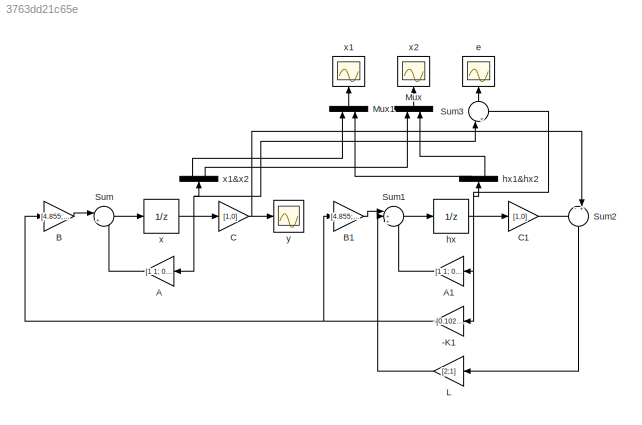
MODEL slx_3763dd21c65e
KIND model
CONFIG AbsTol = auto
CONFIG EnableMultiTasking = off
CONFIG FixedStep = 1
CONFIG MaxStep = auto
CONFIG MinStep = auto
CONFIG RelTol = 1e-3
CONFIG SampleTimeConstraint = Unconstrained
CONFIG SolverName = FixedStepAuto
CONFIG StartTime = 0.0
CONFIG StopTime = 10.0
BLOCK [Gain] -K1
  Gain = -[0.102986611740474,0.154479917610711]
  Multiplication = Matrix(K*u)
BLOCK [Gain] A
  Gain = [1 1; 0 1]
  Multiplication = Matrix(K*u)
BLOCK [Gain] A1
  Gain = [1 1; 0 1]
  Multiplication = Matrix(K*u)
BLOCK [Gain] B
  Gain = [4.855;9.71];
  Multiplication = Matrix(K*u)
BLOCK [Gain] B1
  Gain = [4.855;9.71];
  Multiplication = Matrix(K*u)
BLOCK [Gain] C
  Gain = [1,0]
  Multiplication = Matrix(K*u)
BLOCK [Gain] C1
  Gain = [1,0]
  Multiplication = Matrix(K*u)
BLOCK [Gain] L
  Gain = [2;1]
  Multiplication = Matrix(K*u)
BLOCK [Mux] Mux
  DisplayOption = bar
  Inputs = 2
  NameLocation = right
BLOCK [Mux] Mux1
  DisplayOption = bar
  Inputs = 2
  NameLocation = right
BLOCK [Sum] Sum
  Inputs = |++
BLOCK [Sum] Sum1
  Inputs = |+++
BLOCK [Sum] Sum2
  Inputs = -+|
  NameLocation = left
BLOCK [Sum] Sum3
  Inputs = |+-
  NameLocation = right
BLOCK [Scope] e
  Floating = off
  NameLocation = right
  NumInputPorts = 1
  ScopeSpecificationString = Simulink.scopes.TimeScopeBlockCfg('CurrentConfiguration', extmgr.ConfigurationSet(extmgr.Configuration('Core','General UI',true,'FigureColor',[1 1 1]),extmgr.Configuration('Core','Source UI',true),extmgr.Configuration('Sources','WiredSimulink',true,'DataLoggingVariableName','ScopeData2'),extmgr.Configuration('Visuals','Time Domain',true,'SerializedDisplays',{struct('MinYLimReal','-1.25','MaxYLimRe...<+2324ch>
BLOCK [UnitDelay] hx
  HasFrameUpgradeWarning = on
  InitialCondition = [0;0];
  SampleTime = -1
BLOCK [Demux] hx1&hx2
  NameLocation = right
  Outputs = 2
BLOCK [UnitDelay] x
  HasFrameUpgradeWarning = on
  InitialCondition = [1;0];
  SampleTime = -1
BLOCK [Scope] x1
  Floating = off
  NameLocation = right
  NumInputPorts = 1
  ScopeSpecificationString = Simulink.scopes.TimeScopeBlockCfg('CurrentConfiguration', extmgr.ConfigurationSet(extmgr.Configuration('Core','General UI',true,'FigureColor',[1 1 1]),extmgr.Configuration('Core','Source UI',true),extmgr.Configuration('Sources','WiredSimulink',true,'DataLoggingVariableName','ScopeData1'),extmgr.Configuration('Visuals','Time Domain',true,'SerializedDisplays',{struct('MinYLimReal','-1.65625','MaxYLi...<+2381ch>
BLOCK [Demux] x1&x2
  NameLocation = right
  Outputs = 2
BLOCK [Scope] x2
  Floating = off
  NameLocation = right
  NumInputPorts = 1
  ScopeSpecificationString = Simulink.scopes.TimeScopeBlockCfg('CurrentConfiguration', extmgr.ConfigurationSet(extmgr.Configuration('Core','General UI',true,'FigureColor',[1 1 1]),extmgr.Configuration('Core','Source UI',true),extmgr.Configuration('Sources','WiredSimulink',true,'DataLoggingVariableName','ScopeData1'),extmgr.Configuration('Visuals','Time Domain',true,'SerializedDisplays',{struct('MinYLimReal','-4.25','MaxYLimRe...<+2363ch>
BLOCK [Scope] y
  Floating = off
  NumInputPorts = 1
  ScopeSpecificationString = Simulink.scopes.TimeScopeBlockCfg('CurrentConfiguration', extmgr.ConfigurationSet(extmgr.Configuration('Core','General UI',true,'FigureColor',[1 1 1]),extmgr.Configuration('Core','Source UI',true),extmgr.Configuration('Sources','WiredSimulink',true),extmgr.Configuration('Visuals','Time Domain',true,'SerializedDisplays',{struct('MinYLimReal','-1.53125','MaxYLimReal','1.28125','YLabelReal','y(t)','M...<+2296ch>
NET -K1:1 -> B1:1, B:1
LINE A1:1 -> Sum1:3
LINE A:1 -> Sum:2
LINE B1:1 -> Sum1:1
LINE B:1 -> Sum:1
LINE C1:1 -> Sum2:1
NET C:1 -> Sum2:2, y:1
LINE L:1 -> Sum1:2
LINE Mux1:1 -> x1:1
LINE Mux:1 -> x2:1
LINE Sum1:1 -> hx:1
LINE Sum2:1 -> L:1
LINE Sum3:1 -> e:1
LINE Sum:1 -> x:1
LINE hx1&hx2:1 -> Mux1:2
LINE hx1&hx2:2 -> Mux:2
NET hx:1 -> -K1:1, A1:1, C1:1, Sum3:2, hx1&hx2:1
LINE x1&x2:1 -> Mux1:1
LINE x1&x2:2 -> Mux:1
NET x:1 -> A:1, C:1, Sum3:1, x1&x2:1
note: NET lines group one-source signal fan-out (src -> all destinations, sorted); 1:1 wires keep LINE
